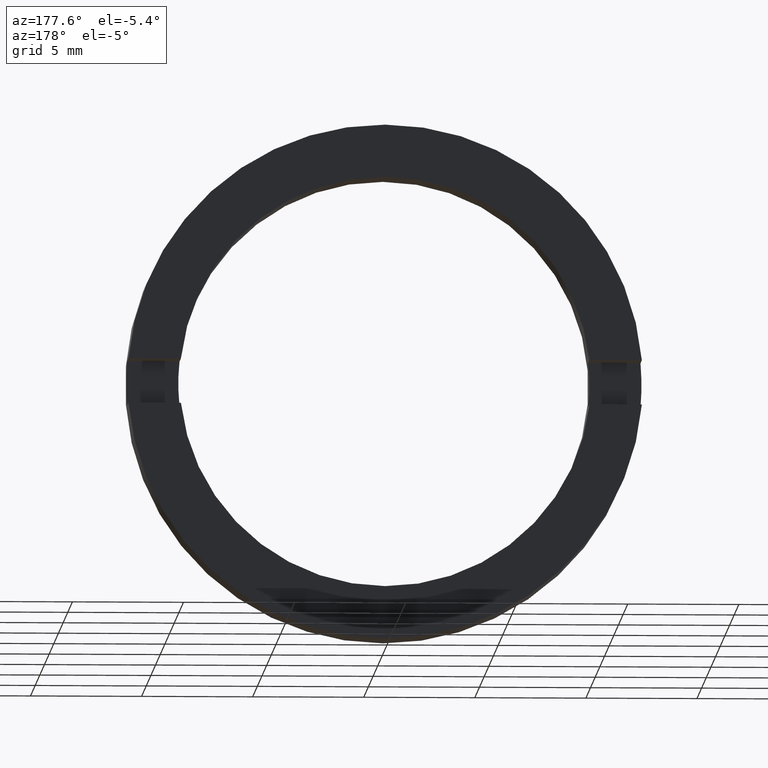
[diagram: clean part render]
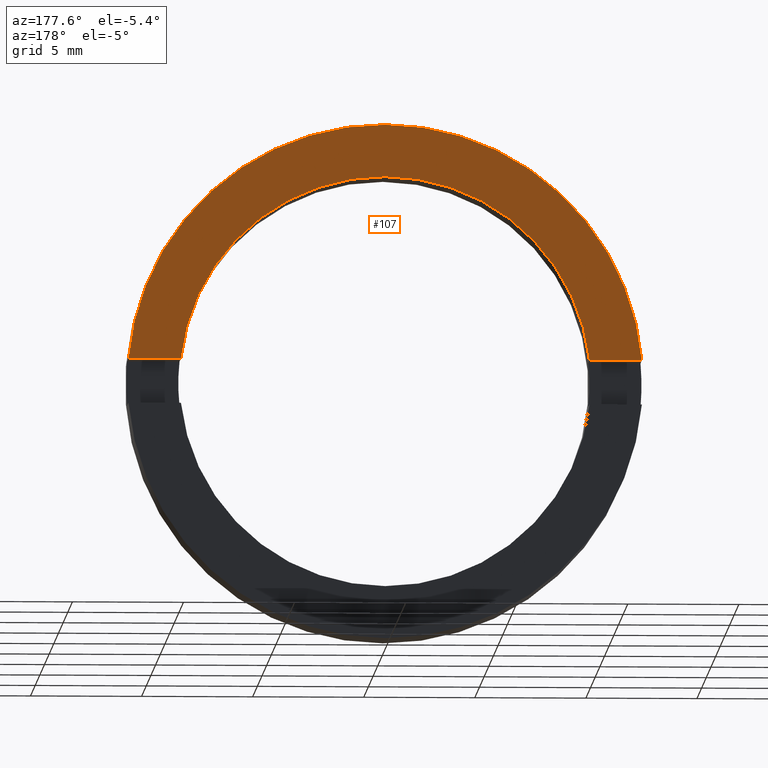
[diagram: same view with one face highlighted and labeled with its STEP entity id]
A machine part, auxiliary view. The second image highlights one B-rep face of the part: STEP entity #107.
In plain terms, the highlighted planar face has unit normal (0, -1, 0).
Its self-contained STEP definition (entity closure, byte-faithful):
#17 = AXIS2_PLACEMENT_3D ( 'NONE', #125, #360, #390 ) ;
#24 = DIRECTION ( 'NONE',  ( 1.000000000000000000, 0.0000000000000000000, 0.0000000000000000000 ) ) ;
#25 = CARTESIAN_POINT ( 'NONE',  ( 9.195787078874765500, -1.964249787179434000, 0.9999999999999995600 ) ) ;
#28 = EDGE_CURVE ( 'NONE', #547, #362, #290, .T. ) ;
#54 = EDGE_LOOP ( 'NONE', ( #497, #193, #197, #67, #401, #220 ) ) ;
#67 = ORIENTED_EDGE ( 'NONE', *, *, #87, .F. ) ;
#79 = CARTESIAN_POINT ( 'NONE',  ( -11.55681617055494400, -1.964249787179430900, 1.000000000000000000 ) ) ;
#84 = VERTEX_POINT ( 'NONE', #423 ) ;
#87 = EDGE_CURVE ( 'NONE', #84, #271, #447, .T. ) ;
#90 = VECTOR ( 'NONE', #24, 1000.000000000000000 ) ;
#106 = CIRCLE ( 'NONE', #407, 9.250000000000007100 ) ;
#107 = ADVANCED_FACE ( 'NONE', ( #571 ), #206, .F. ) ;
#108 = DIRECTION ( 'NONE',  ( 1.000000000000000000, 0.0000000000000000000, 0.0000000000000000000 ) ) ;
#109 = DIRECTION ( 'NONE',  ( -0.0000000000000000000, 1.000000000000000000, -0.0000000000000000000 ) ) ;
#118 = CARTESIAN_POINT ( 'NONE',  ( 0.0000000000000000000, -1.964249787179434000, 0.0000000000000000000 ) ) ;
#125 = CARTESIAN_POINT ( 'NONE',  ( 0.0000000000000000000, -1.964249787179434000, 0.0000000000000000000 ) ) ;
#152 = EDGE_CURVE ( 'NONE', #391, #84, #106, .T. ) ;
#160 = CARTESIAN_POINT ( 'NONE',  ( 0.0000000000000000000, -1.964249787179434000, 0.0000000000000000000 ) ) ;
#193 = ORIENTED_EDGE ( 'NONE', *, *, #499, .T. ) ;
#197 = ORIENTED_EDGE ( 'NONE', *, *, #314, .F. ) ;
#200 = CARTESIAN_POINT ( 'NONE',  ( -9.195787078874765500, -1.964249787179434000, 0.9999999999999995600 ) ) ;
#202 = VECTOR ( 'NONE', #108, 1000.000000000000000 ) ;
#204 = DIRECTION ( 'NONE',  ( 0.0000000000000000000, 0.0000000000000000000, 1.000000000000000000 ) ) ;
#206 = PLANE ( 'NONE',  #448 ) ;
#214 = DIRECTION ( 'NONE',  ( -0.0000000000000000000, 1.000000000000000000, -0.0000000000000000000 ) ) ;
#220 = ORIENTED_EDGE ( 'NONE', *, *, #232, .F. ) ;
#231 = LINE ( 'NONE', #427, #90 ) ;
#232 = EDGE_CURVE ( 'NONE', #547, #391, #458, .T. ) ;
#236 = CARTESIAN_POINT ( 'NONE',  ( 0.0000000000000000000, -1.964249787179434000, 0.0000000000000000000 ) ) ;
#245 = DIRECTION ( 'NONE',  ( 0.0000000000000000000, -0.0000000000000000000, -1.000000000000000000 ) ) ;
#262 = VERTEX_POINT ( 'NONE', #465 ) ;
#271 = VERTEX_POINT ( 'NONE', #25 ) ;
#276 = DIRECTION ( 'NONE',  ( 0.0000000000000000000, 0.0000000000000000000, 1.000000000000000000 ) ) ;
#290 = CIRCLE ( 'NONE', #411, 11.60000000000000700 ) ;
#292 = DIRECTION ( 'NONE',  ( 0.0000000000000000000, -1.000000000000000000, 0.0000000000000000000 ) ) ;
#298 = CARTESIAN_POINT ( 'NONE',  ( 9.250000000000007100, -1.964249787179430900, 0.0000000000000000000 ) ) ;
#314 = EDGE_CURVE ( 'NONE', #271, #262, #231, .T. ) ;
#326 = DIRECTION ( 'NONE',  ( -0.0000000000000000000, 1.000000000000000000, -0.0000000000000000000 ) ) ;
#344 = AXIS2_PLACEMENT_3D ( 'NONE', #160, #109, #204 ) ;
#353 = DIRECTION ( 'NONE',  ( 0.0000000000000000000, 0.0000000000000000000, 1.000000000000000000 ) ) ;
#360 = DIRECTION ( 'NONE',  ( -0.0000000000000000000, 1.000000000000000000, -0.0000000000000000000 ) ) ;
#362 = VERTEX_POINT ( 'NONE', #472 ) ;
#390 = DIRECTION ( 'NONE',  ( 0.0000000000000000000, 0.0000000000000000000, 1.000000000000000000 ) ) ;
#391 = VERTEX_POINT ( 'NONE', #200 ) ;
#401 = ORIENTED_EDGE ( 'NONE', *, *, #152, .F. ) ;
#407 = AXIS2_PLACEMENT_3D ( 'NONE', #118, #214, #353 ) ;
#411 = AXIS2_PLACEMENT_3D ( 'NONE', #236, #326, #276 ) ;
#423 = CARTESIAN_POINT ( 'NONE',  ( 0.0000000000000000000, -1.964249787179434000, 9.250000000000007100 ) ) ;
#427 = CARTESIAN_POINT ( 'NONE',  ( -26.85254027261461800, -1.964249787179430900, 1.000000000000000000 ) ) ;
#447 = CIRCLE ( 'NONE', #344, 9.250000000000007100 ) ;
#448 = AXIS2_PLACEMENT_3D ( 'NONE', #298, #292, #245 ) ;
#458 = LINE ( 'NONE', #510, #202 ) ;
#465 = CARTESIAN_POINT ( 'NONE',  ( 11.55681617055492800, -1.964249787179430900, 1.000000000000000000 ) ) ;
#472 = CARTESIAN_POINT ( 'NONE',  ( 0.0000000000000000000, -1.964249787179434000, 11.60000000000000700 ) ) ;
#497 = ORIENTED_EDGE ( 'NONE', *, *, #28, .T. ) ;
#499 = EDGE_CURVE ( 'NONE', #362, #262, #533, .T. ) ;
#510 = CARTESIAN_POINT ( 'NONE',  ( -26.85254027261461800, -1.964249787179430900, 1.000000000000000000 ) ) ;
#533 = CIRCLE ( 'NONE', #17, 11.60000000000000700 ) ;
#547 = VERTEX_POINT ( 'NONE', #79 ) ;
#571 = FACE_OUTER_BOUND ( 'NONE', #54, .T. ) ;